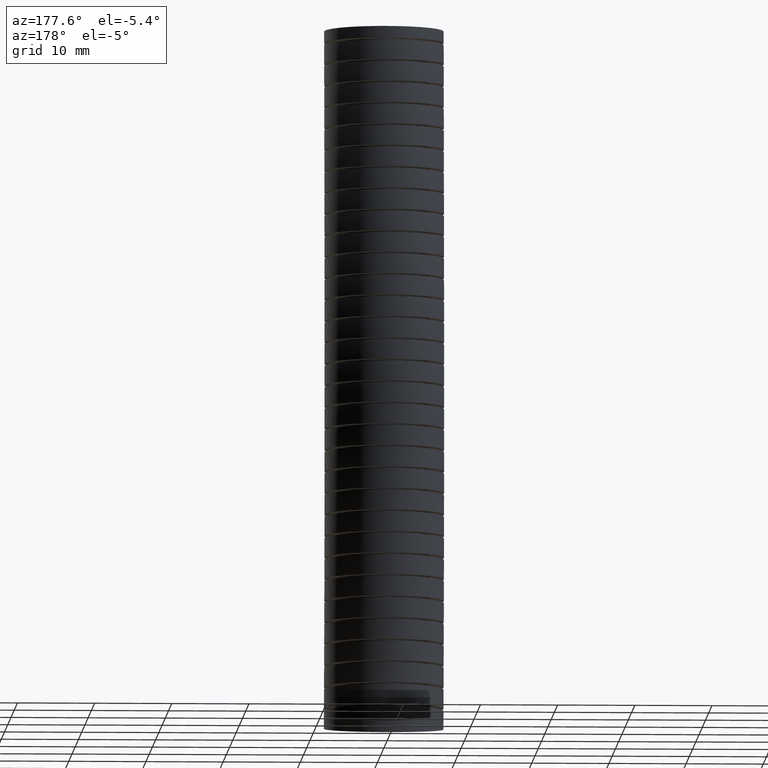
[diagram: clean part render]
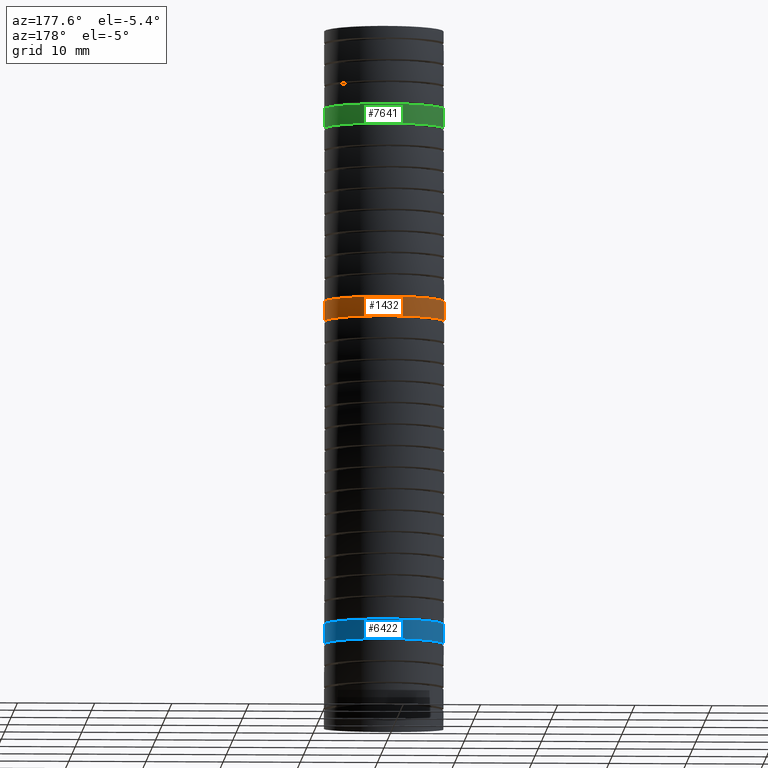
[diagram: same view with three faces highlighted in distinct colors, each labeled with its STEP entity id]
A machine part, auxiliary view with three faces highlighted in distinct colors.
Their STEP definitions:

[orange] entity #1432 — the highlighted face is a freeform B-spline surface patch.
#1352 = EDGE_LOOP ( 'NONE', ( #7107, #7112, #7097, #7099 ) ) ;
#1432 = ADVANCED_FACE ( 'NONE', ( #6829 ), #6858, .T. ) ;
#2818 = EDGE_CURVE ( 'NONE', #6515, #4520, #7166, .T. ) ;
#4520 = VERTEX_POINT ( 'NONE', #14256 ) ;
#6513 = VERTEX_POINT ( 'NONE', #11764 ) ;
#6515 = VERTEX_POINT ( 'NONE', #11823 ) ;
#6517 = VERTEX_POINT ( 'NONE', #11809 ) ;
#6519 = EDGE_CURVE ( 'NONE', #6513, #6517, #11848, .T. ) ;
#6574 = CARTESIAN_POINT ( 'NONE',  ( -0.3049999999999999400, -0.01189670328115248300, -3.380058092153300100 ) ) ;
#6575 = CARTESIAN_POINT ( 'NONE',  ( -0.3049999999999999900, 0.03783273064349428100, -2.858291051460112500 ) ) ;
#6576 = CARTESIAN_POINT ( 'NONE',  ( -0.3049999999999999900, 0.07694042471324441500, -1.669468061939300500 ) ) ;
#6577 = CARTESIAN_POINT ( 'NONE',  ( -0.3050000000000000500, 0.03078003440073754200, -0.6678710777714059700 ) ) ;
#6578 = CARTESIAN_POINT ( 'NONE',  ( -0.3050000000000000500, 3.735172737399427600E-017, 0.0000000000000000000 ) ) ;
#6829 = FACE_OUTER_BOUND ( 'NONE', #1352, .T. ) ;
#6833 = CARTESIAN_POINT ( 'NONE',  ( -0.3050000000000000500, -0.6339397472009050700, -3.484228316147418800 ) ) ;
#6834 = CARTESIAN_POINT ( 'NONE',  ( -0.3050000000000000500, -0.6165911457587421900, -3.301565899820480900 ) ) ;
#6835 = CARTESIAN_POINT ( 'NONE',  ( -0.3050000000000000500, -0.5689348463287677800, -2.799795492787948300 ) ) ;
#6836 = CARTESIAN_POINT ( 'NONE',  ( -0.3050000000000001000, -0.5337097317260344200, -1.651227135941712300 ) ) ;
#6837 = CARTESIAN_POINT ( 'NONE',  ( -0.3050000000000001600, -0.5794800608306244200, -0.6605737911785694000 ) ) ;
#6838 = CARTESIAN_POINT ( 'NONE',  ( -0.3050000000000001000, -0.6100000000000001000, 0.0000000000000000000 ) ) ;
#6839 = CARTESIAN_POINT ( 'NONE',  ( 0.3049999999999999400, -0.6339397472009050700, -3.484228316147418800 ) ) ;
#6840 = CARTESIAN_POINT ( 'NONE',  ( 0.3049999999999999400, -0.6165911457587421900, -3.301565899820480900 ) ) ;
#6841 = CARTESIAN_POINT ( 'NONE',  ( 0.3049999999999999400, -0.5689348463287677800, -2.799795492787948300 ) ) ;
#6842 = CARTESIAN_POINT ( 'NONE',  ( 0.3050000000000000500, -0.5337097317260344200, -1.651227135941712300 ) ) ;
#6843 = CARTESIAN_POINT ( 'NONE',  ( 0.3050000000000000500, -0.5794800608306244200, -0.6605737911785694000 ) ) ;
#6844 = CARTESIAN_POINT ( 'NONE',  ( 0.3050000000000000500, -0.6100000000000001000, 0.0000000000000000000 ) ) ;
#6845 = CARTESIAN_POINT ( 'NONE',  ( 0.3049999999999999900, -0.02999999999999999900, -3.569999999999999400 ) ) ;
#6846 = CARTESIAN_POINT ( 'NONE',  ( 0.3049999999999999400, -0.01189670328115252300, -3.380058092153300100 ) ) ;
#6847 = CARTESIAN_POINT ( 'NONE',  ( 0.3049999999999999900, 0.03783273064349424600, -2.858291051460112500 ) ) ;
#6848 = CARTESIAN_POINT ( 'NONE',  ( 0.3049999999999999900, 0.07694042471324438700, -1.669468061939300500 ) ) ;
#6849 = CARTESIAN_POINT ( 'NONE',  ( 0.3050000000000000500, 0.03078003440073750300, -0.6678710777714059700 ) ) ;
#6850 = CARTESIAN_POINT ( 'NONE',  ( 0.3050000000000000500, 0.0000000000000000000, 0.0000000000000000000 ) ) ;
#6858 =( BOUNDED_SURFACE ( )  B_SPLINE_SURFACE ( 3, 3, ( 
 ( #6850, #6849, #6848, #6847, #6846, #6845 ),
 ( #6844, #6843, #6842, #6841, #6840, #6839 ),
 ( #6838, #6837, #6836, #6835, #6834, #6833 ),
 ( #6578, #6577, #6576, #6575, #6574, #6881 ),
 ( #6880, #6879, #6878, #6877, #6876, #6875 ),
 ( #6874, #6873, #6872, #6871, #6870, #6869 ),
 ( #6868, #6867, #6866, #6865, #6864, #6863 ) ),
 .UNSPECIFIED., .F., .F., .F. ) 
 B_SPLINE_SURFACE_WITH_KNOTS ( ( 4, 3, 4 ),
 ( 4, 1, 1, 4 ),
 ( 0.0000000000000000000, 0.5000000000000000000, 1.000000000000000000 ),
 ( 0.0000000000000000000, 0.5599999999999999400, 0.8398242262648183400, 1.000000000000000000 ),
 .UNSPECIFIED. ) 
 GEOMETRIC_REPRESENTATION_ITEM ( )  RATIONAL_B_SPLINE_SURFACE ( (
 ( 1.000000000000000000, 1.000000000000000000, 1.000000000000000200, 1.000000000000000000, 1.000000000000000000, 1.000000000000000000),
 ( 0.3333333333333333100, 0.3333333333333333100, 0.3333333333333333100, 0.3333333333333333100, 0.3333333333333333100, 0.3333333333333333100),
 ( 0.3333333333333333100, 0.3333333333333333100, 0.3333333333333333100, 0.3333333333333333100, 0.3333333333333333100, 0.3333333333333333100),
 ( 1.000000000000000000, 1.000000000000000000, 1.000000000000000200, 1.000000000000000000, 1.000000000000000000, 1.000000000000000000),
 ( 0.3333333333333333100, 0.3333333333333333100, 0.3333333333333333100, 0.3333333333333333100, 0.3333333333333333100, 0.3333333333333333100),
 ( 0.3333333333333333100, 0.3333333333333333100, 0.3333333333333333100, 0.3333333333333333100, 0.3333333333333333100, 0.3333333333333333100),
 ( 1.000000000000000000, 1.000000000000000000, 1.000000000000000200, 1.000000000000000000, 1.000000000000000000, 1.000000000000000000) ) ) 
 REPRESENTATION_ITEM ( '' )  SURFACE ( )  );
#6863 = CARTESIAN_POINT ( 'NONE',  ( 0.3049999999999999900, -0.02999999999999999900, -3.569999999999999400 ) ) ;
#6864 = CARTESIAN_POINT ( 'NONE',  ( 0.3049999999999999400, -0.01189670328115252300, -3.380058092153300100 ) ) ;
#6865 = CARTESIAN_POINT ( 'NONE',  ( 0.3049999999999999900, 0.03783273064349424600, -2.858291051460112500 ) ) ;
#6866 = CARTESIAN_POINT ( 'NONE',  ( 0.3049999999999999900, 0.07694042471324438700, -1.669468061939300500 ) ) ;
#6867 = CARTESIAN_POINT ( 'NONE',  ( 0.3050000000000000500, 0.03078003440073750300, -0.6678710777714059700 ) ) ;
#6868 = CARTESIAN_POINT ( 'NONE',  ( 0.3050000000000000500, 0.0000000000000000000, 0.0000000000000000000 ) ) ;
#6869 = CARTESIAN_POINT ( 'NONE',  ( 0.3049999999999999400, 0.5739397472009051300, -3.655771683852579600 ) ) ;
#6870 = CARTESIAN_POINT ( 'NONE',  ( 0.3049999999999999400, 0.5927977391964371900, -3.458550284486119800 ) ) ;
#6871 = CARTESIAN_POINT ( 'NONE',  ( 0.3049999999999999400, 0.6446003076157559300, -2.916786610132277200 ) ) ;
#6872 = CARTESIAN_POINT ( 'NONE',  ( 0.3050000000000000500, 0.6875905811525232500, -1.687708987936889400 ) ) ;
#6873 = CARTESIAN_POINT ( 'NONE',  ( 0.3050000000000000500, 0.6410401296320993300, -0.6751683643642422100 ) ) ;
#6874 = CARTESIAN_POINT ( 'NONE',  ( 0.3050000000000000500, 0.6100000000000001000, 0.0000000000000000000 ) ) ;
#6875 = CARTESIAN_POINT ( 'NONE',  ( -0.3049999999999998800, 0.5739397472009051300, -3.655771683852579600 ) ) ;
#6876 = CARTESIAN_POINT ( 'NONE',  ( -0.3049999999999998800, 0.5927977391964373000, -3.458550284486119800 ) ) ;
#6877 = CARTESIAN_POINT ( 'NONE',  ( -0.3049999999999999400, 0.6446003076157562600, -2.916786610132277200 ) ) ;
#6878 = CARTESIAN_POINT ( 'NONE',  ( -0.3049999999999999400, 0.6875905811525234700, -1.687708987936889400 ) ) ;
#6879 = CARTESIAN_POINT ( 'NONE',  ( -0.3049999999999999400, 0.6410401296320996600, -0.6751683643642422100 ) ) ;
#6880 = CARTESIAN_POINT ( 'NONE',  ( -0.3049999999999999400, 0.6100000000000001000, 0.0000000000000000000 ) ) ;
#6881 = CARTESIAN_POINT ( 'NONE',  ( -0.3049999999999999900, -0.02999999999999996100, -3.569999999999999400 ) ) ;
#7097 = ORIENTED_EDGE ( 'NONE', *, *, #2818, .T. ) ;
#7099 = ORIENTED_EDGE ( 'NONE', *, *, #7101, .T. ) ;
#7100 = EDGE_CURVE ( 'NONE', #6513, #6515, #12398, .T. ) ;
#7101 = EDGE_CURVE ( 'NONE', #4520, #6517, #12437, .T. ) ;
#7107 = ORIENTED_EDGE ( 'NONE', *, *, #6519, .F. ) ;
#7112 = ORIENTED_EDGE ( 'NONE', *, *, #7100, .T. ) ;
#7162 = CARTESIAN_POINT ( 'NONE',  ( 0.3050000000000000500, 0.05421608436069735900, -1.489025684703928300 ) ) ;
#7163 = CARTESIAN_POINT ( 'NONE',  ( 0.3050000000000000500, 0.05364840844215725000, -1.455701533475108200 ) ) ;
#7164 = CARTESIAN_POINT ( 'NONE',  ( 0.3050000000000000500, 0.05301556047757510800, -1.422374746923287500 ) ) ;
#7165 = CARTESIAN_POINT ( 'NONE',  ( 0.3050000000000000500, 0.05232191951843480300, -1.389045502121618800 ) ) ;
#7166 = B_SPLINE_CURVE_WITH_KNOTS ( 'NONE', 3,
 ( #7165, #7164, #7163, #7162 ),
 .UNSPECIFIED., .F., .F.,
 ( 4, 4 ),
 ( 0.3883637733354464200, 0.4163384661891965100 ),
 .UNSPECIFIED. ) ;
#11764 = CARTESIAN_POINT ( 'NONE',  ( -0.3049999999999999900, 0.05232191952642160900, -1.389045502313499800 ) ) ;
#11809 = CARTESIAN_POINT ( 'NONE',  ( -0.3050000000000000500, 0.05421608436723624600, -1.489025684895853900 ) ) ;
#11823 = CARTESIAN_POINT ( 'NONE',  ( 0.3050000000000000500, 0.05232191951843480300, -1.389045502121618800 ) ) ;
#11844 = CARTESIAN_POINT ( 'NONE',  ( -0.3050000000000000500, 0.05421608436723624600, -1.489025684895853900 ) ) ;
#11845 = CARTESIAN_POINT ( 'NONE',  ( -0.3050000000000000500, 0.05364840844567772500, -1.455701533667084200 ) ) ;
#11846 = CARTESIAN_POINT ( 'NONE',  ( -0.3050000000000000500, 0.05301556048133715400, -1.422374747115257900 ) ) ;
#11847 = CARTESIAN_POINT ( 'NONE',  ( -0.3049999999999999900, 0.05232191952642160900, -1.389045502313499800 ) ) ;
#11848 = B_SPLINE_CURVE_WITH_KNOTS ( 'NONE', 3,
 ( #11847, #11846, #11845, #11844 ),
 .UNSPECIFIED., .F., .F.,
 ( 4, 4 ),
 ( 0.3883637733891543400, 0.4163384662429175400 ),
 .UNSPECIFIED. ) ;
#12398 = B_SPLINE_CURVE_WITH_KNOTS ( 'NONE', 3,
 ( #12407, #12406, #12405, #12404, #12403, #12402, #12401, #12400, #12476, #12475, #12474, #12473, #12472, #12471, #12470, #12469, #12468, #12467, #12466, #12465, #12464, #12463, #12462, #12461, #12460, #12459, #12458, #12457, #12456, #12455, #12454, #12453, #12452, #12451, #12450, #12449, #12448, #12447, #12446, #12445, #12444, #12443, #12442, #12441, #12440 ),
 .UNSPECIFIED., .F., .F.,
 ( 4, 2, 2, 2, 2, 2, 2, 2, 2, 2, 2, 1, 2, 2, 2, 2, 2, 2, 2, 2, 2, 2, 4 ),
 ( 0.02447188104066952800, 0.02523667891433648700, 0.02600147678800344600, 0.02753107253533736500, 0.02906066828267128400, 0.02982546615633823900, 0.03059026403000519900, 0.03211985977733911700, 0.03364945552467302900, 0.03517905127200694800, 0.03594384914567390300, 0.03670864701934085900, 0.03747344489300782200, 0.03823824276667478500, 0.03976783851400869700, 0.04053263638767565200, 0.04129743426134261500, 0.04282703000867653400, 0.04359182788234349000, 0.04435662575601044500, 0.04588622150334435700, 0.04741581725067826900, 0.04894541299801218700 ),
 .UNSPECIFIED. ) ;
#12400 = CARTESIAN_POINT ( 'NONE',  ( -0.2740391704865228800, 0.1876362043929584400, -1.389045502313499300 ) ) ;
#12401 = CARTESIAN_POINT ( 'NONE',  ( -0.2894612982742169600, 0.1504568965688803400, -1.389045502313499300 ) ) ;
#12402 = CARTESIAN_POINT ( 'NONE',  ( -0.2952238640508282300, 0.1314115909485642200, -1.389045502313499300 ) ) ;
#12403 = CARTESIAN_POINT ( 'NONE',  ( -0.3010552035841530000, 0.1021859338634097500, -1.389045502313499300 ) ) ;
#12404 = CARTESIAN_POINT ( 'NONE',  ( -0.3025267717145181400, 0.09233362256810602500, -1.389045502313499800 ) ) ;
#12405 = CARTESIAN_POINT ( 'NONE',  ( -0.3045023168977096200, 0.07240273107659674100, -1.389045502313499800 ) ) ;
#12406 = CARTESIAN_POINT ( 'NONE',  ( -0.3050000000000000500, 0.06230824413096428000, -1.389045502313500400 ) ) ;
#12407 = CARTESIAN_POINT ( 'NONE',  ( -0.3049999999999999900, 0.05232191952642160900, -1.389045502313499800 ) ) ;
#12432 = CARTESIAN_POINT ( 'NONE',  ( 0.3030209297381568600, 0.09416941149690122300, -1.489025684895854300 ) ) ;
#12433 = CARTESIAN_POINT ( 'NONE',  ( 0.3049999999999999900, 0.07436129477234211500, -1.489025684703928300 ) ) ;
#12434 = CARTESIAN_POINT ( 'NONE',  ( 0.3050000000000000500, 0.05421608436069735900, -1.489025684703928300 ) ) ;
#12437 = B_SPLINE_CURVE_WITH_KNOTS ( 'NONE', 3,
 ( #12434, #12433, #12432, #12524, #12523, #12522, #12521, #12520, #12519, #12518, #12517, #12516, #12515, #12514, #12513, #12512, #12511, #12510, #12509, #12508, #12507, #12506, #12505, #12504, #12503, #12502, #12501, #12500, #12499, #12498, #12497, #12496, #12495, #12494, #12493, #12492, #12491, #12490, #12489, #12488, #12487, #12486, #12485 ),
 .UNSPECIFIED., .F., .F.,
 ( 4, 2, 2, 2, 2, 2, 2, 2, 1, 2, 2, 2, 2, 2, 2, 2, 2, 2, 2, 2, 2, 4 ),
 ( 0.0000000000000000000, 0.001513270421354796700, 0.002269905632032194800, 0.003026540842709592500, 0.004539811264064392200, 0.006053081685419192000, 0.007566352106773991700, 0.008322987317451390300, 0.009079622528128791400, 0.009836257738806189100, 0.01059289294948359000, 0.01210616337083838900, 0.01361943379219318800, 0.01513270421354798900, 0.01588933942422538600, 0.01664597463490278400, 0.01815924505625757900, 0.01967251547761237100, 0.02042915068828976900, 0.02118578589896717000, 0.02269905632032196600, 0.02421232674167676800 ),
 .UNSPECIFIED. ) ;
#12440 = CARTESIAN_POINT ( 'NONE',  ( 0.3050000000000000500, 0.05232191951843480300, -1.389045502121618800 ) ) ;
#12441 = CARTESIAN_POINT ( 'NONE',  ( 0.3049999999999999400, 0.07246494044576944100, -1.389045502121618600 ) ) ;
#12442 = CARTESIAN_POINT ( 'NONE',  ( 0.3029959623355874000, 0.09246265779314273600, -1.389045502313498900 ) ) ;
#12443 = CARTESIAN_POINT ( 'NONE',  ( 0.2952228095737494700, 0.1314134055513214400, -1.389045502313498900 ) ) ;
#12444 = CARTESIAN_POINT ( 'NONE',  ( 0.2894283302678809500, 0.1505496309264537900, -1.389045502313498200 ) ) ;
#12445 = CARTESIAN_POINT ( 'NONE',  ( 0.2740130191455644200, 0.1876859426352333600, -1.389045502313498000 ) ) ;
#12446 = CARTESIAN_POINT ( 'NONE',  ( 0.2646052797060203200, 0.2052103978658778600, -1.389045502313499800 ) ) ;
#12447 = CARTESIAN_POINT ( 'NONE',  ( 0.2480317948509523100, 0.2299857075190831800, -1.389045502313499800 ) ) ;
#12448 = CARTESIAN_POINT ( 'NONE',  ( 0.2420939815806089400, 0.2379904033033193600, -1.389045502313498700 ) ) ;
#12449 = CARTESIAN_POINT ( 'NONE',  ( 0.2293700809435942100, 0.2534790298585428700, -1.389045502313498700 ) ) ;
#12450 = CARTESIAN_POINT ( 'NONE',  ( 0.2225813106086577100, 0.2609548551017805100, -1.389045502313498900 ) ) ;
#12451 = CARTESIAN_POINT ( 'NONE',  ( 0.2013894494302391200, 0.2821041761120626800, -1.389045502313498700 ) ) ;
#12452 = CARTESIAN_POINT ( 'NONE',  ( 0.1860305711837441900, 0.2946897037582483200, -1.389045502313500400 ) ) ;
#12453 = CARTESIAN_POINT ( 'NONE',  ( 0.1611507028720616800, 0.3113029988468620200, -1.389045502313500000 ) ) ;
#12454 = CARTESIAN_POINT ( 'NONE',  ( 0.1525017807308379500, 0.3164844041779276100, -1.389045502313500200 ) ) ;
#12455 = CARTESIAN_POINT ( 'NONE',  ( 0.1347971932684425000, 0.3259312112297762500, -1.389045502313500000 ) ) ;
#12456 = CARTESIAN_POINT ( 'NONE',  ( 0.1257760638414568400, 0.3301850435906640300, -1.389045502313498700 ) ) ;
#12457 = CARTESIAN_POINT ( 'NONE',  ( 0.09822039338114406400, 0.3415773899412624700, -1.389045502313498200 ) ) ;
#12458 = CARTESIAN_POINT ( 'NONE',  ( 0.07919828586040084100, 0.3473598686301411200, -1.389045502313498700 ) ) ;
#12459 = CARTESIAN_POINT ( 'NONE',  ( 0.04965796527501967900, 0.3532324434237308400, -1.389045502313498200 ) ) ;
#12460 = CARTESIAN_POINT ( 'NONE',  ( 0.03969405441064941700, 0.3547040043902023300, -1.389045502313498700 ) ) ;
#12461 = CARTESIAN_POINT ( 'NONE',  ( 0.01985173275200187800, 0.3566490414522430200, -1.389045502313498700 ) ) ;
#12462 = CARTESIAN_POINT ( 'NONE',  ( 1.780147511991895300E-006, 0.3576156263209373500, -1.389045502313501500 ) ) ;
#12463 = CARTESIAN_POINT ( 'NONE',  ( -0.01986325117772324800, 0.3566487932770270300, -1.389045502313499800 ) ) ;
#12464 = CARTESIAN_POINT ( 'NONE',  ( -0.03973594849428851300, 0.3546990144508957400, -1.389045502313499800 ) ) ;
#12465 = CARTESIAN_POINT ( 'NONE',  ( -0.04973101320874507400, 0.3532196485136198100, -1.389045502313499300 ) ) ;
#12466 = CARTESIAN_POINT ( 'NONE',  ( -0.07920440944249247700, 0.3473551840219791800, -1.389045502313499100 ) ) ;
#12467 = CARTESIAN_POINT ( 'NONE',  ( -0.09821559126375799300, 0.3415802264904692600, -1.389045502313500200 ) ) ;
#12468 = CARTESIAN_POINT ( 'NONE',  ( -0.1349883916410099000, 0.3263755373404218500, -1.389045502313499800 ) ) ;
#12469 = CARTESIAN_POINT ( 'NONE',  ( -0.1528999409599079400, 0.3168141827981473300, -1.389045502313499300 ) ) ;
#12470 = CARTESIAN_POINT ( 'NONE',  ( -0.1860265390293357200, 0.2946905778075961700, -1.389045502313500000 ) ) ;
#12471 = CARTESIAN_POINT ( 'NONE',  ( -0.2013914550824556800, 0.2821055701636327500, -1.389045502313498200 ) ) ;
#12472 = CARTESIAN_POINT ( 'NONE',  ( -0.2226192532827722900, 0.2609152860778736800, -1.389045502313498700 ) ) ;
#12473 = CARTESIAN_POINT ( 'NONE',  ( -0.2294153591070124700, 0.2534263995782562500, -1.389045502313500000 ) ) ;
#12474 = CARTESIAN_POINT ( 'NONE',  ( -0.2421099166489107700, 0.2379685075552165600, -1.389045502313500200 ) ) ;
#12475 = CARTESIAN_POINT ( 'NONE',  ( -0.2480400433540574700, 0.2299739419318169400, -1.389045502313500000 ) ) ;
#12476 = CARTESIAN_POINT ( 'NONE',  ( -0.2646048700128930100, 0.2052098796741062800, -1.389045502313499800 ) ) ;
#12485 = CARTESIAN_POINT ( 'NONE',  ( -0.3050000000000000500, 0.05421608436723624600, -1.489025684895853900 ) ) ;
#12486 = CARTESIAN_POINT ( 'NONE',  ( -0.3050000000000001600, 0.07411533237524774200, -1.489025684895853000 ) ) ;
#12487 = CARTESIAN_POINT ( 'NONE',  ( -0.3030038023917953600, 0.09432422194229266000, -1.489025684895851900 ) ) ;
#12488 = CARTESIAN_POINT ( 'NONE',  ( -0.2952033959948297000, 0.1333887072104377200, -1.489025684895851900 ) ) ;
#12489 = CARTESIAN_POINT ( 'NONE',  ( -0.2894348917521898400, 0.1523957757935634200, -1.489025684895851900 ) ) ;
#12490 = CARTESIAN_POINT ( 'NONE',  ( -0.2779454033296632200, 0.1801089814440161000, -1.489025684895852500 ) ) ;
#12491 = CARTESIAN_POINT ( 'NONE',  ( -0.2736152836100026500, 0.1892493734214503200, -1.489025684895853400 ) ) ;
#12492 = CARTESIAN_POINT ( 'NONE',  ( -0.2641697619551157700, 0.2068807723792940900, -1.489025684895853900 ) ) ;
#12493 = CARTESIAN_POINT ( 'NONE',  ( -0.2590419844739968400, 0.2154124220673941700, -1.489025684895852500 ) ) ;
#12494 = CARTESIAN_POINT ( 'NONE',  ( -0.2424689171882661600, 0.2401729759777162000, -1.489025684895852700 ) ) ;
#12495 = CARTESIAN_POINT ( 'NONE',  ( -0.2298188210554519000, 0.2556024332082872900, -1.489025684895852700 ) ) ;
#12496 = CARTESIAN_POINT ( 'NONE',  ( -0.2013351589844653800, 0.2840424606014516600, -1.489025684895851900 ) ) ;
#12497 = CARTESIAN_POINT ( 'NONE',  ( -0.1859288463572547100, 0.2966368482352246300, -1.489025684895854100 ) ) ;
#12498 = CARTESIAN_POINT ( 'NONE',  ( -0.1611391399806433900, 0.3131828041416361800, -1.489025684895854500 ) ) ;
#12499 = CARTESIAN_POINT ( 'NONE',  ( -0.1525937971514019500, 0.3183042985234233500, -1.489025684895852500 ) ) ;
#12500 = CARTESIAN_POINT ( 'NONE',  ( -0.1349251742627311200, 0.3277404820693423600, -1.489025684895852500 ) ) ;
#12501 = CARTESIAN_POINT ( 'NONE',  ( -0.1257848616435306200, 0.3320554138363704400, -1.489025684895853400 ) ) ;
#12502 = CARTESIAN_POINT ( 'NONE',  ( -0.09809413691818350000, 0.3434985677295626100, -1.489025684895854300 ) ) ;
#12503 = CARTESIAN_POINT ( 'NONE',  ( -0.07908589618747709200, 0.3492516017987255500, -1.489025684895852500 ) ) ;
#12504 = CARTESIAN_POINT ( 'NONE',  ( -0.03998055034308429400, 0.3570289744040070500, -1.489025684895853000 ) ) ;
#12505 = CARTESIAN_POINT ( 'NONE',  ( -0.01978179802756929000, 0.3590096883980539200, -1.489025684895852100 ) ) ;
#12506 = CARTESIAN_POINT ( 'NONE',  ( 0.01999187542981506800, 0.3589960001531886100, -1.489025684895852100 ) ) ;
#12507 = CARTESIAN_POINT ( 'NONE',  ( 0.03977619136808244200, 0.3570642767334251700, -1.489025684895851600 ) ) ;
#12508 = CARTESIAN_POINT ( 'NONE',  ( 0.06929473903843726100, 0.3512015472370842400, -1.489025684895852100 ) ) ;
#12509 = CARTESIAN_POINT ( 'NONE',  ( 0.07907992607650557400, 0.3487485647566804200, -1.489025684895852500 ) ) ;
#12510 = CARTESIAN_POINT ( 'NONE',  ( 0.09817092856317533000, 0.3429550196387287100, -1.489025684895852700 ) ) ;
#12511 = CARTESIAN_POINT ( 'NONE',  ( 0.1168888226121174300, 0.3362548552582950200, -1.489025684895853900 ) ) ;
#12512 = CARTESIAN_POINT ( 'NONE',  ( 0.1348706173674820400, 0.3277660371483467900, -1.489025684895852700 ) ) ;
#12513 = CARTESIAN_POINT ( 'NONE',  ( 0.1524787615488214800, 0.3183692824344637200, -1.489025684895853000 ) ) ;
#12514 = CARTESIAN_POINT ( 'NONE',  ( 0.1611419565385841000, 0.3131845667529951100, -1.489025684895852700 ) ) ;
#12515 = CARTESIAN_POINT ( 'NONE',  ( 0.1861542450343210700, 0.2964790695270074200, -1.489025684895852100 ) ) ;
#12516 = CARTESIAN_POINT ( 'NONE',  ( 0.2015141239263084100, 0.2838654339715927500, -1.489025684895853000 ) ) ;
#12517 = CARTESIAN_POINT ( 'NONE',  ( 0.2296654137411156800, 0.2557539398513973800, -1.489025684895853200 ) ) ;
#12518 = CARTESIAN_POINT ( 'NONE',  ( 0.2425543787223745100, 0.2400685785255896900, -1.489025684895852500 ) ) ;
#12519 = CARTESIAN_POINT ( 'NONE',  ( 0.2647022276069392300, 0.2069323672991965600, -1.489025684895852500 ) ) ;
#12520 = CARTESIAN_POINT ( 'NONE',  ( 0.2740770420474539800, 0.1894226479026743800, -1.489025684895853200 ) ) ;
#12521 = CARTESIAN_POINT ( 'NONE',  ( 0.2855674013504755400, 0.1617327926089662000, -1.489025684895853200 ) ) ;
#12522 = CARTESIAN_POINT ( 'NONE',  ( 0.2889779483208851900, 0.1522131112906471600, -1.489025684895852500 ) ) ;
#12523 = CARTESIAN_POINT ( 'NONE',  ( 0.2947888618817546300, 0.1330576698201743900, -1.489025684895853000 ) ) ;
#12524 = CARTESIAN_POINT ( 'NONE',  ( 0.2972053942246992200, 0.1233966709191662400, -1.489025684895854300 ) ) ;
#14256 = CARTESIAN_POINT ( 'NONE',  ( 0.3050000000000000500, 0.05421608436069735900, -1.489025684703928300 ) ) ;

[blue] entity #6422 — the highlighted face is a freeform B-spline surface patch.
#1989 = CARTESIAN_POINT ( 'NONE',  ( -0.3049999999999999900, 0.009314224273082137900, -3.137699816077109500 ) ) ;
#2042 = CARTESIAN_POINT ( 'NONE',  ( -0.3049999999999999400, 0.01718359904029205200, -3.038041253195780600 ) ) ;
#2043 = CARTESIAN_POINT ( 'NONE',  ( -0.3049999999999999900, 0.009314224273082137900, -3.137699816077109500 ) ) ;
#2044 = CARTESIAN_POINT ( 'NONE',  ( -0.3049999999999999400, 0.01204488271966974000, -3.104484643385703200 ) ) ;
#2045 = CARTESIAN_POINT ( 'NONE',  ( -0.3049999999999999400, 0.01467567780329371300, -3.071265432578998300 ) ) ;
#2046 = CARTESIAN_POINT ( 'NONE',  ( -0.3049999999999999400, 0.01718359904029205200, -3.038041253195780600 ) ) ;
#2047 = B_SPLINE_CURVE_WITH_KNOTS ( 'NONE', 3,
 ( #2046, #2045, #2044, #2043 ),
 .UNSPECIFIED., .F., .F.,
 ( 4, 4 ),
 ( 0.8505083096109503600, 0.8785034948660098700 ),
 .UNSPECIFIED. ) ;
#2146 = CARTESIAN_POINT ( 'NONE',  ( 0.3049999999999999400, 0.01718359906927166200, -3.038041253003823000 ) ) ;
#6338 = VERTEX_POINT ( 'NONE', #8714 ) ;
#6340 = EDGE_CURVE ( 'NONE', #13828, #6338, #8712, .T. ) ;
#6402 = ORIENTED_EDGE ( 'NONE', *, *, #6403, .T. ) ;
#6403 = EDGE_CURVE ( 'NONE', #6338, #13813, #9683, .T. ) ;
#6422 = ADVANCED_FACE ( 'NONE', ( #9957 ), #10045, .T. ) ;
#6423 = EDGE_LOOP ( 'NONE', ( #6424, #6425, #6427, #6402 ) ) ;
#6424 = ORIENTED_EDGE ( 'NONE', *, *, #13817, .F. ) ;
#6425 = ORIENTED_EDGE ( 'NONE', *, *, #6426, .T. ) ;
#6426 = EDGE_CURVE ( 'NONE', #13822, #13828, #10046, .T. ) ;
#6427 = ORIENTED_EDGE ( 'NONE', *, *, #6340, .T. ) ;
#8704 = CARTESIAN_POINT ( 'NONE',  ( 0.3049999999999999900, 0.009314224273041942600, -3.137699816077352400 ) ) ;
#8705 = CARTESIAN_POINT ( 'NONE',  ( 0.3049999999999999900, 0.01204488272494555700, -3.104484643321534100 ) ) ;
#8706 = CARTESIAN_POINT ( 'NONE',  ( 0.3049999999999999900, 0.01467567781347816300, -3.071265432450401600 ) ) ;
#8707 = CARTESIAN_POINT ( 'NONE',  ( 0.3049999999999999400, 0.01718359906927166200, -3.038041253003823000 ) ) ;
#8712 = B_SPLINE_CURVE_WITH_KNOTS ( 'NONE', 3,
 ( #8707, #8706, #8705, #8704 ),
 .UNSPECIFIED., .F., .F.,
 ( 4, 4 ),
 ( 0.8505083095567294000, 0.8785034948660783700 ),
 .UNSPECIFIED. ) ;
#8714 = CARTESIAN_POINT ( 'NONE',  ( 0.3049999999999999900, 0.009314224273041942600, -3.137699816077352400 ) ) ;
#9641 = CARTESIAN_POINT ( 'NONE',  ( -0.2953228544665035300, 0.08826438653192977800, -3.137699816077108600 ) ) ;
#9642 = CARTESIAN_POINT ( 'NONE',  ( -0.2894459981512789200, 0.1077159116031603500, -3.137699816077108600 ) ) ;
#9643 = CARTESIAN_POINT ( 'NONE',  ( -0.2742548961802041600, 0.1445286471249254100, -3.137699816077108600 ) ) ;
#9644 = CARTESIAN_POINT ( 'NONE',  ( -0.2649191226686900500, 0.1621062065020064400, -3.137699816077110300 ) ) ;
#9645 = CARTESIAN_POINT ( 'NONE',  ( -0.2482326904747919300, 0.1871948331880729500, -3.137699816077109000 ) ) ;
#9646 = CARTESIAN_POINT ( 'NONE',  ( -0.2422294465971455400, 0.1953177383977357000, -3.137699816077108100 ) ) ;
#9647 = CARTESIAN_POINT ( 'NONE',  ( -0.2295839824684623700, 0.2107811186493669100, -3.137699816077108600 ) ) ;
#9648 = CARTESIAN_POINT ( 'NONE',  ( -0.2162413804638158900, 0.2255532365498734700, -3.137699816077108100 ) ) ;
#9649 = CARTESIAN_POINT ( 'NONE',  ( -0.2015227026861230200, 0.2389608763363677800, -3.137699816077107700 ) ) ;
#9650 = CARTESIAN_POINT ( 'NONE',  ( -0.1861051616819562600, 0.2516755429625968700, -3.137699816077107700 ) ) ;
#9651 = CARTESIAN_POINT ( 'NONE',  ( -0.1779992790817515300, 0.2577166247061090700, -3.137699816077106400 ) ) ;
#9652 = CARTESIAN_POINT ( 'NONE',  ( -0.1529915929143852200, 0.2744913949548593600, -3.137699816077106400 ) ) ;
#9653 = CARTESIAN_POINT ( 'NONE',  ( -0.1354527172600466500, 0.2838921353958094900, -3.137699816077108600 ) ) ;
#9654 = CARTESIAN_POINT ( 'NONE',  ( -0.09867963848292182800, 0.2992085837165921500, -3.137699816077109000 ) ) ;
#9655 = CARTESIAN_POINT ( 'NONE',  ( -0.07923642396218731600, 0.3051416904954378200, -3.137699816077106400 ) ) ;
#9656 = CARTESIAN_POINT ( 'NONE',  ( -0.04011013243586022300, 0.3129635463459513600, -3.137699816077106400 ) ) ;
#9657 = CARTESIAN_POINT ( 'NONE',  ( -0.02032240943580634500, 0.3149387423001984700, -3.137699816077107700 ) ) ;
#9658 = CARTESIAN_POINT ( 'NONE',  ( 0.009699385560651654900, 0.3149691093132272500, -3.137699816077108100 ) ) ;
#9659 = CARTESIAN_POINT ( 'NONE',  ( 0.01981321989866561100, 0.3144787782119406500, -3.137699816077103700 ) ) ;
#9660 = CARTESIAN_POINT ( 'NONE',  ( 0.03975413760047027300, 0.3125181785834590400, -3.137699816077105900 ) ) ;
#9661 = CARTESIAN_POINT ( 'NONE',  ( 0.04961503050154864700, 0.3110528889890929500, -3.137699816077104100 ) ) ;
#9662 = CARTESIAN_POINT ( 'NONE',  ( 0.07887627717245514200, 0.3052342127467534400, -3.137699816077103700 ) ) ;
#9663 = CARTESIAN_POINT ( 'NONE',  ( 0.09797029829537440300, 0.2994671059672366400, -3.137699816077110300 ) ) ;
#9664 = CARTESIAN_POINT ( 'NONE',  ( 0.1352226899195856900, 0.2840239516190684000, -3.137699816077111700 ) ) ;
#9665 = CARTESIAN_POINT ( 'NONE',  ( 0.1527808276254147300, 0.2745994582836152600, -3.137699816077109500 ) ) ;
#9666 = CARTESIAN_POINT ( 'NONE',  ( 0.1775815609863939900, 0.2580129592040271100, -3.137699816077108100 ) ) ;
#9667 = CARTESIAN_POINT ( 'NONE',  ( 0.1855904875818014400, 0.2520727946082849700, -3.137699816077107700 ) ) ;
#9668 = CARTESIAN_POINT ( 'NONE',  ( 0.2010806013577585700, 0.2393510355608066700, -3.137699816077108600 ) ) ;
#9669 = CARTESIAN_POINT ( 'NONE',  ( 0.2085765551580693000, 0.2325468338204727000, -3.137699816077107700 ) ) ;
#9670 = CARTESIAN_POINT ( 'NONE',  ( 0.2297774719858208800, 0.2113064943933899700, -3.137699816077108100 ) ) ;
#9671 = CARTESIAN_POINT ( 'NONE',  ( 0.2423781676069580200, 0.1959251069849768900, -3.137699816077109000 ) ) ;
#9672 = CARTESIAN_POINT ( 'NONE',  ( 0.2645420943176889900, 0.1627431336112497000, -3.137699816077109500 ) ) ;
#9673 = CARTESIAN_POINT ( 'NONE',  ( 0.2741153376611889500, 0.1448130698489351600, -3.137699816077108600 ) ) ;
#9674 = CARTESIAN_POINT ( 'NONE',  ( 0.2893466987013007000, 0.1080094778703427200, -3.137699816077106400 ) ) ;
#9675 = CARTESIAN_POINT ( 'NONE',  ( 0.2951407660108534300, 0.08897381894601412400, -3.137699816077108100 ) ) ;
#9676 = CARTESIAN_POINT ( 'NONE',  ( 0.3010363348444183900, 0.05944757509685127900, -3.137699816077108100 ) ) ;
#9677 = CARTESIAN_POINT ( 'NONE',  ( 0.3025261182507870700, 0.04944570563454144000, -3.137699816077107700 ) ) ;
#9678 = CARTESIAN_POINT ( 'NONE',  ( 0.3045032660515056800, 0.02944160710364266900, -3.137699816077108100 ) ) ;
#9679 = CARTESIAN_POINT ( 'NONE',  ( 0.3049999999999998800, 0.01939859892394100700, -3.137699816077350600 ) ) ;
#9680 = CARTESIAN_POINT ( 'NONE',  ( 0.3049999999999999900, 0.009314224273041942600, -3.137699816077352400 ) ) ;
#9683 = B_SPLINE_CURVE_WITH_KNOTS ( 'NONE', 3,
 ( #9680, #9679, #9678, #9677, #9676, #9675, #9674, #9673, #9672, #9671, #9670, #9669, #9668, #9667, #9666, #9665, #9664, #9663, #9662, #9661, #9660, #9659, #9658, #9657, #9656, #9655, #9654, #9653, #9652, #9651, #9650, #9649, #9648, #9647, #9646, #9645, #9644, #9643, #9642, #9641, #9704, #9703, #9702 ),
 .UNSPECIFIED., .F., .F.,
 ( 4, 2, 2, 2, 2, 2, 2, 2, 2, 2, 2, 2, 2, 2, 2, 2, 1, 2, 2, 2, 2, 4 ),
 ( 0.0000000000000000000, 0.0007657785819049689300, 0.001531557163809937900, 0.003063114327619874800, 0.004594671491429812500, 0.006126228655239749700, 0.006892007237144717400, 0.007657785819049686900, 0.009189342982859626700, 0.01072090014666956700, 0.01148667872857453900, 0.01225245731047951100, 0.01378401447428945200, 0.01531557163809939500, 0.01684712880190934000, 0.01761290738381431100, 0.01837868596571928100, 0.01914446454762425100, 0.01991024312952922200, 0.02144180029333916600, 0.02297335745714911000, 0.02450491462095905400 ),
 .UNSPECIFIED. ) ;
#9702 = CARTESIAN_POINT ( 'NONE',  ( -0.3049999999999999900, 0.009314224273082137900, -3.137699816077109500 ) ) ;
#9703 = CARTESIAN_POINT ( 'NONE',  ( -0.3049999999999999900, 0.02931333794669863100, -3.137699816077108600 ) ) ;
#9704 = CARTESIAN_POINT ( 'NONE',  ( -0.3030602080092641400, 0.04910272141841251500, -3.137699816077108600 ) ) ;
#9957 = FACE_OUTER_BOUND ( 'NONE', #6423, .T. ) ;
#10027 = CARTESIAN_POINT ( 'NONE',  ( -0.3050000000000001600, -0.5794800608306244200, -0.6605737911785694000 ) ) ;
#10028 = CARTESIAN_POINT ( 'NONE',  ( -0.3050000000000001000, -0.6100000000000001000, 0.0000000000000000000 ) ) ;
#10029 = CARTESIAN_POINT ( 'NONE',  ( 0.3049999999999999400, -0.6339397472009050700, -3.484228316147418800 ) ) ;
#10030 = CARTESIAN_POINT ( 'NONE',  ( 0.3049999999999999400, -0.6165911457587421900, -3.301565899820480900 ) ) ;
#10031 = CARTESIAN_POINT ( 'NONE',  ( 0.3049999999999999400, -0.5689348463287677800, -2.799795492787948300 ) ) ;
#10032 = CARTESIAN_POINT ( 'NONE',  ( 0.3050000000000000500, -0.5337097317260344200, -1.651227135941712300 ) ) ;
#10033 = CARTESIAN_POINT ( 'NONE',  ( 0.3050000000000000500, -0.5794800608306244200, -0.6605737911785694000 ) ) ;
#10034 = CARTESIAN_POINT ( 'NONE',  ( 0.3050000000000000500, -0.6100000000000001000, 0.0000000000000000000 ) ) ;
#10035 = CARTESIAN_POINT ( 'NONE',  ( 0.3049999999999999900, -0.02999999999999999900, -3.569999999999999400 ) ) ;
#10036 = CARTESIAN_POINT ( 'NONE',  ( 0.3049999999999999400, -0.01189670328115252300, -3.380058092153300100 ) ) ;
#10037 = CARTESIAN_POINT ( 'NONE',  ( 0.3049999999999999900, 0.03783273064349424600, -2.858291051460112500 ) ) ;
#10038 = CARTESIAN_POINT ( 'NONE',  ( 0.3049999999999999900, 0.07694042471324438700, -1.669468061939300500 ) ) ;
#10039 = CARTESIAN_POINT ( 'NONE',  ( 0.3050000000000000500, 0.03078003440073750300, -0.6678710777714059700 ) ) ;
#10040 = CARTESIAN_POINT ( 'NONE',  ( 0.3050000000000000500, 0.0000000000000000000, 0.0000000000000000000 ) ) ;
#10041 = CARTESIAN_POINT ( 'NONE',  ( -0.2972364992028440100, 0.08639828730328953700, -3.038041253195779200 ) ) ;
#10042 = CARTESIAN_POINT ( 'NONE',  ( -0.3030740674984560600, 0.05689396754391280000, -3.038041253195778800 ) ) ;
#10043 = CARTESIAN_POINT ( 'NONE',  ( -0.3050000000000000500, 0.03709982063952717300, -3.038041253195780600 ) ) ;
#10044 = CARTESIAN_POINT ( 'NONE',  ( -0.3049999999999999400, 0.01718359904029205200, -3.038041253195780600 ) ) ;
#10045 =( BOUNDED_SURFACE ( )  B_SPLINE_SURFACE ( 3, 3, ( 
 ( #10040, #10039, #10038, #10037, #10036, #10035 ),
 ( #10034, #10033, #10032, #10031, #10030, #10029 ),
 ( #10028, #10027, #10078, #10077, #10076, #10075 ),
 ( #10074, #10073, #10072, #10071, #10070, #10069 ),
 ( #10068, #10066, #10065, #10064, #10063, #10062 ),
 ( #10060, #10059, #10058, #10056, #10055, #10054 ),
 ( #10053, #10052, #10051, #10050, #10049, #10048 ) ),
 .UNSPECIFIED., .F., .F., .F. ) 
 B_SPLINE_SURFACE_WITH_KNOTS ( ( 4, 3, 4 ),
 ( 4, 1, 1, 4 ),
 ( 0.0000000000000000000, 0.5000000000000000000, 1.000000000000000000 ),
 ( 0.0000000000000000000, 0.5599999999999999400, 0.8398242262648183400, 1.000000000000000000 ),
 .UNSPECIFIED. ) 
 GEOMETRIC_REPRESENTATION_ITEM ( )  RATIONAL_B_SPLINE_SURFACE ( (
 ( 1.000000000000000000, 1.000000000000000000, 1.000000000000000200, 1.000000000000000000, 1.000000000000000000, 1.000000000000000000),
 ( 0.3333333333333333100, 0.3333333333333333100, 0.3333333333333333100, 0.3333333333333333100, 0.3333333333333333100, 0.3333333333333333100),
 ( 0.3333333333333333100, 0.3333333333333333100, 0.3333333333333333100, 0.3333333333333333100, 0.3333333333333333100, 0.3333333333333333100),
 ( 1.000000000000000000, 1.000000000000000000, 1.000000000000000200, 1.000000000000000000, 1.000000000000000000, 1.000000000000000000),
 ( 0.3333333333333333100, 0.3333333333333333100, 0.3333333333333333100, 0.3333333333333333100, 0.3333333333333333100, 0.3333333333333333100),
 ( 0.3333333333333333100, 0.3333333333333333100, 0.3333333333333333100, 0.3333333333333333100, 0.3333333333333333100, 0.3333333333333333100),
 ( 1.000000000000000000, 1.000000000000000000, 1.000000000000000200, 1.000000000000000000, 1.000000000000000000, 1.000000000000000000) ) ) 
 REPRESENTATION_ITEM ( '' )  SURFACE ( )  );
#10046 = B_SPLINE_CURVE_WITH_KNOTS ( 'NONE', 3,
 ( #10044, #10043, #10042, #10041, #10128, #10127, #10126, #10125, #10124, #10123, #10122, #10121, #10120, #10119, #10118, #10117, #10116, #10115, #10114, #10113, #10112, #10111, #10110, #10108, #10107, #10106, #10105, #10104, #10103, #10102, #10101, #10100, #10099, #10098, #10097, #10096, #10095, #10094, #10093, #10092, #10091, #10090, #10089, #10088, #10087 ),
 .UNSPECIFIED., .F., .F.,
 ( 4, 2, 2, 1, 2, 2, 2, 2, 2, 2, 2, 2, 2, 2, 2, 2, 2, 2, 2, 2, 2, 2, 4 ),
 ( 0.02424033095107463700, 0.02575490766648089200, 0.02651219602418402100, 0.02726948438188714700, 0.02802677273959027600, 0.02878406109729340600, 0.03029863781269966400, 0.03105592617040279400, 0.03181321452810591900, 0.03332779124351218500, 0.03408507960121531100, 0.03484236795891844400, 0.03635694467432470200, 0.03787152138973096100, 0.03862880974743409400, 0.03938609810513722700, 0.04090067482054348500, 0.04241525153594974400, 0.04392982825135599600, 0.04468711660905912800, 0.04544440496676226100, 0.04695898168216852000, 0.04847355839757478600 ),
 .UNSPECIFIED. ) ;
#10048 = CARTESIAN_POINT ( 'NONE',  ( 0.3049999999999999900, -0.02999999999999999900, -3.569999999999999400 ) ) ;
#10049 = CARTESIAN_POINT ( 'NONE',  ( 0.3049999999999999400, -0.01189670328115252300, -3.380058092153300100 ) ) ;
#10050 = CARTESIAN_POINT ( 'NONE',  ( 0.3049999999999999900, 0.03783273064349424600, -2.858291051460112500 ) ) ;
#10051 = CARTESIAN_POINT ( 'NONE',  ( 0.3049999999999999900, 0.07694042471324438700, -1.669468061939300500 ) ) ;
#10052 = CARTESIAN_POINT ( 'NONE',  ( 0.3050000000000000500, 0.03078003440073750300, -0.6678710777714059700 ) ) ;
#10053 = CARTESIAN_POINT ( 'NONE',  ( 0.3050000000000000500, 0.0000000000000000000, 0.0000000000000000000 ) ) ;
#10054 = CARTESIAN_POINT ( 'NONE',  ( 0.3049999999999999400, 0.5739397472009051300, -3.655771683852579600 ) ) ;
#10055 = CARTESIAN_POINT ( 'NONE',  ( 0.3049999999999999400, 0.5927977391964371900, -3.458550284486119800 ) ) ;
#10056 = CARTESIAN_POINT ( 'NONE',  ( 0.3049999999999999400, 0.6446003076157559300, -2.916786610132277200 ) ) ;
#10058 = CARTESIAN_POINT ( 'NONE',  ( 0.3050000000000000500, 0.6875905811525232500, -1.687708987936889400 ) ) ;
#10059 = CARTESIAN_POINT ( 'NONE',  ( 0.3050000000000000500, 0.6410401296320993300, -0.6751683643642422100 ) ) ;
#10060 = CARTESIAN_POINT ( 'NONE',  ( 0.3050000000000000500, 0.6100000000000001000, 0.0000000000000000000 ) ) ;
#10062 = CARTESIAN_POINT ( 'NONE',  ( -0.3049999999999998800, 0.5739397472009051300, -3.655771683852579600 ) ) ;
#10063 = CARTESIAN_POINT ( 'NONE',  ( -0.3049999999999998800, 0.5927977391964373000, -3.458550284486119800 ) ) ;
#10064 = CARTESIAN_POINT ( 'NONE',  ( -0.3049999999999999400, 0.6446003076157562600, -2.916786610132277200 ) ) ;
#10065 = CARTESIAN_POINT ( 'NONE',  ( -0.3049999999999999400, 0.6875905811525234700, -1.687708987936889400 ) ) ;
#10066 = CARTESIAN_POINT ( 'NONE',  ( -0.3049999999999999400, 0.6410401296320996600, -0.6751683643642422100 ) ) ;
#10068 = CARTESIAN_POINT ( 'NONE',  ( -0.3049999999999999400, 0.6100000000000001000, 0.0000000000000000000 ) ) ;
#10069 = CARTESIAN_POINT ( 'NONE',  ( -0.3049999999999999900, -0.02999999999999996100, -3.569999999999999400 ) ) ;
#10070 = CARTESIAN_POINT ( 'NONE',  ( -0.3049999999999999400, -0.01189670328115248300, -3.380058092153300100 ) ) ;
#10071 = CARTESIAN_POINT ( 'NONE',  ( -0.3049999999999999900, 0.03783273064349428100, -2.858291051460112500 ) ) ;
#10072 = CARTESIAN_POINT ( 'NONE',  ( -0.3049999999999999900, 0.07694042471324441500, -1.669468061939300500 ) ) ;
#10073 = CARTESIAN_POINT ( 'NONE',  ( -0.3050000000000000500, 0.03078003440073754200, -0.6678710777714059700 ) ) ;
#10074 = CARTESIAN_POINT ( 'NONE',  ( -0.3050000000000000500, 3.735172737399427600E-017, 0.0000000000000000000 ) ) ;
#10075 = CARTESIAN_POINT ( 'NONE',  ( -0.3050000000000000500, -0.6339397472009050700, -3.484228316147418800 ) ) ;
#10076 = CARTESIAN_POINT ( 'NONE',  ( -0.3050000000000000500, -0.6165911457587421900, -3.301565899820480900 ) ) ;
#10077 = CARTESIAN_POINT ( 'NONE',  ( -0.3050000000000000500, -0.5689348463287677800, -2.799795492787948300 ) ) ;
#10078 = CARTESIAN_POINT ( 'NONE',  ( -0.3050000000000001000, -0.5337097317260344200, -1.651227135941712300 ) ) ;
#10087 = CARTESIAN_POINT ( 'NONE',  ( 0.3049999999999999400, 0.01718359906927166200, -3.038041253003823000 ) ) ;
#10088 = CARTESIAN_POINT ( 'NONE',  ( 0.3049999999999997700, 0.03734595788048013900, -3.038041253003822100 ) ) ;
#10089 = CARTESIAN_POINT ( 'NONE',  ( 0.3030263623602944000, 0.05730000286837825400, -3.038041253195780600 ) ) ;
#10090 = CARTESIAN_POINT ( 'NONE',  ( 0.2951464688045964400, 0.09679274285228987900, -3.038041253195780600 ) ) ;
#10091 = CARTESIAN_POINT ( 'NONE',  ( 0.2893061583765071900, 0.1159332598434629400, -3.038041253195783200 ) ) ;
#10092 = CARTESIAN_POINT ( 'NONE',  ( 0.2778890272586417300, 0.1434796671315156400, -3.038041253195783200 ) ) ;
#10093 = CARTESIAN_POINT ( 'NONE',  ( 0.2736339940326514800, 0.1524829460048376100, -3.038041253195780600 ) ) ;
#10094 = CARTESIAN_POINT ( 'NONE',  ( 0.2642081515025538900, 0.1701249710786902900, -3.038041253195781000 ) ) ;
#10095 = CARTESIAN_POINT ( 'NONE',  ( 0.2590057664633722000, 0.1788057391088911100, -3.038041253195779700 ) ) ;
#10096 = CARTESIAN_POINT ( 'NONE',  ( 0.2423011987283211200, 0.2037920905332624400, -3.038041253195779200 ) ) ;
#10097 = CARTESIAN_POINT ( 'NONE',  ( 0.2296794685539932700, 0.2191581343969898600, -3.038041253195781900 ) ) ;
#10098 = CARTESIAN_POINT ( 'NONE',  ( 0.2015123488997905800, 0.2473480797636093100, -3.038041253195781900 ) ) ;
#10099 = CARTESIAN_POINT ( 'NONE',  ( 0.1858017377119408300, 0.2602456150487601500, -3.038041253195778300 ) ) ;
#10100 = CARTESIAN_POINT ( 'NONE',  ( 0.1526597787799917100, 0.2823813466384425000, -3.038041253195779700 ) ) ;
#10101 = CARTESIAN_POINT ( 'NONE',  ( 0.1351283801622059100, 0.2917644009434014500, -3.038041253195779200 ) ) ;
#10102 = CARTESIAN_POINT ( 'NONE',  ( 0.1073663143813881600, 0.3032690683499735300, -3.038041253195778800 ) ) ;
#10103 = CARTESIAN_POINT ( 'NONE',  ( 0.09783562047996936800, 0.3066764518413085900, -3.038041253195778800 ) ) ;
#10104 = CARTESIAN_POINT ( 'NONE',  ( 0.07868899343313957900, 0.3124731772546661700, -3.038041253195779200 ) ) ;
#10105 = CARTESIAN_POINT ( 'NONE',  ( 0.06902672070849606700, 0.3148850734480117500, -3.038041253195779200 ) ) ;
#10106 = CARTESIAN_POINT ( 'NONE',  ( 0.03977797106956540400, 0.3206884100650264100, -3.038041253195779700 ) ) ;
#10107 = CARTESIAN_POINT ( 'NONE',  ( 0.01985121210533603500, 0.3226612360391864500, -3.038041253195779700 ) ) ;
#10108 = CARTESIAN_POINT ( 'NONE',  ( -0.02038914832626997200, 0.3226256988001439100, -3.038041253195781000 ) ) ;
#10110 = CARTESIAN_POINT ( 'NONE',  ( -0.04019750878715932400, 0.3206338655348051600, -3.038041253195782300 ) ) ;
#10111 = CARTESIAN_POINT ( 'NONE',  ( -0.06945805976336992500, 0.3147846647413994300, -3.038041253195784100 ) ) ;
#10112 = CARTESIAN_POINT ( 'NONE',  ( -0.07913569391458988300, 0.3123545329937486600, -3.038041253195779700 ) ) ;
#10113 = CARTESIAN_POINT ( 'NONE',  ( -0.09833513899429370500, 0.3065077857681710600, -3.038041253195778800 ) ) ;
#10114 = CARTESIAN_POINT ( 'NONE',  ( -0.1078441342790567700, 0.3030877327105037100, -3.038041253195779200 ) ) ;
#10115 = CARTESIAN_POINT ( 'NONE',  ( -0.1355070541295440000, 0.2915728935573416700, -3.038041253195778800 ) ) ;
#10116 = CARTESIAN_POINT ( 'NONE',  ( -0.1530212345448808100, 0.2821753888788529100, -3.038041253195781400 ) ) ;
#10117 = CARTESIAN_POINT ( 'NONE',  ( -0.1779034750314474600, 0.2655025722383164700, -3.038041253195781000 ) ) ;
#10118 = CARTESIAN_POINT ( 'NONE',  ( -0.1860055200000369500, 0.2594772483933964800, -3.038041253195780600 ) ) ;
#10119 = CARTESIAN_POINT ( 'NONE',  ( -0.2015051562439356700, 0.2467091039470702100, -3.038041253195781400 ) ) ;
#10120 = CARTESIAN_POINT ( 'NONE',  ( -0.2088855627874593200, 0.2399887425255688400, -3.038041253195779200 ) ) ;
#10121 = CARTESIAN_POINT ( 'NONE',  ( -0.2299494296234489100, 0.2188469036535321800, -3.038041253195779700 ) ) ;
#10122 = CARTESIAN_POINT ( 'NONE',  ( -0.2425658657783403600, 0.2034540741588579900, -3.038041253195781900 ) ) ;
#10123 = CARTESIAN_POINT ( 'NONE',  ( -0.2592854113835104700, 0.1783574369281412100, -3.038041253195781900 ) ) ;
#10124 = CARTESIAN_POINT ( 'NONE',  ( -0.2644496234455268600, 0.1697041993780713500, -3.038041253195780600 ) ) ;
#10125 = CARTESIAN_POINT ( 'NONE',  ( -0.2738261526683269400, 0.1520906321717459300, -3.038041253195781000 ) ) ;
#10126 = CARTESIAN_POINT ( 'NONE',  ( -0.2823015928834650700, 0.1340952905410876500, -3.038041253195781000 ) ) ;
#10127 = CARTESIAN_POINT ( 'NONE',  ( -0.2889963415136857000, 0.1153455034572429800, -3.038041253195781000 ) ) ;
#10128 = CARTESIAN_POINT ( 'NONE',  ( -0.2947857411932445800, 0.09621213709152909300, -3.038041253195780600 ) ) ;
#13813 = VERTEX_POINT ( 'NONE', #1989 ) ;
#13817 = EDGE_CURVE ( 'NONE', #13822, #13813, #2047, .T. ) ;
#13822 = VERTEX_POINT ( 'NONE', #2042 ) ;
#13828 = VERTEX_POINT ( 'NONE', #2146 ) ;

[green] entity #7641 — the highlighted face is a freeform B-spline surface patch.
#3013 = CARTESIAN_POINT ( 'NONE',  ( -0.3050000000000000500, 0.02247953488523969000, -0.4995585872373210500 ) ) ;
#3015 = CARTESIAN_POINT ( 'NONE',  ( 0.3049999999999999900, 0.02247953488524355800, -0.4995585872373665100 ) ) ;
#3025 = CARTESIAN_POINT ( 'NONE',  ( -0.3050000000000000500, 0.02247953488523969000, -0.4995585872373210500 ) ) ;
#3026 = CARTESIAN_POINT ( 'NONE',  ( -0.3050000000000000500, 0.02105363169573924000, -0.4662606116642301600 ) ) ;
#3027 = CARTESIAN_POINT ( 'NONE',  ( -0.3050000000000000500, 0.01960595115049378400, -0.4329617554934802600 ) ) ;
#3028 = CARTESIAN_POINT ( 'NONE',  ( -0.3050000000000000500, 0.01814084832900268000, -0.3996621948285281100 ) ) ;
#3030 = B_SPLINE_CURVE_WITH_KNOTS ( 'NONE', 3,
 ( #3028, #3027, #3026, #3025 ),
 .UNSPECIFIED., .F., .F.,
 ( 4, 4 ),
 ( 0.1117067601020961300, 0.1396303112745845000 ),
 .UNSPECIFIED. ) ;
#7629 = EDGE_CURVE ( 'NONE', #10383, #9931, #13493, .T. ) ;
#7631 = EDGE_LOOP ( 'NONE', ( #7633, #7632, #7676, #7682 ) ) ;
#7632 = ORIENTED_EDGE ( 'NONE', *, *, #7629, .T. ) ;
#7633 = ORIENTED_EDGE ( 'NONE', *, *, #14380, .F. ) ;
#7641 = ADVANCED_FACE ( 'NONE', ( #13582 ), #14399, .T. ) ;
#7674 = EDGE_CURVE ( 'NONE', #14367, #14372, #14776, .T. ) ;
#7676 = ORIENTED_EDGE ( 'NONE', *, *, #9960, .T. ) ;
#7682 = ORIENTED_EDGE ( 'NONE', *, *, #7674, .T. ) ;
#9931 = VERTEX_POINT ( 'NONE', #15398 ) ;
#9960 = EDGE_CURVE ( 'NONE', #9931, #14367, #15434, .T. ) ;
#10383 = VERTEX_POINT ( 'NONE', #15735 ) ;
#13452 = CARTESIAN_POINT ( 'NONE',  ( 0.2892812584072183600, 0.1168031814964742400, -0.3996621948285283800 ) ) ;
#13453 = CARTESIAN_POINT ( 'NONE',  ( 0.2778497222536644400, 0.1443170154616067500, -0.3996621948285283300 ) ) ;
#13454 = CARTESIAN_POINT ( 'NONE',  ( 0.2735895938345299600, 0.1533091048497405000, -0.3996621948285280500 ) ) ;
#13455 = CARTESIAN_POINT ( 'NONE',  ( 0.2641531530015598900, 0.1709281507276563800, -0.3996621948285282200 ) ) ;
#13456 = CARTESIAN_POINT ( 'NONE',  ( 0.2589453461448220600, 0.1795967694072474200, -0.3996621948285287200 ) ) ;
#13457 = CARTESIAN_POINT ( 'NONE',  ( 0.2422274664892830300, 0.2045428306747341900, -0.3996621948285284900 ) ) ;
#13458 = CARTESIAN_POINT ( 'NONE',  ( 0.2295982564790153000, 0.2198807990886445200, -0.3996621948285281600 ) ) ;
#13459 = CARTESIAN_POINT ( 'NONE',  ( 0.2014212335535888200, 0.2480142145876944000, -0.3996621948285283300 ) ) ;
#13460 = CARTESIAN_POINT ( 'NONE',  ( 0.1857081872600781800, 0.2608830404794053600, -0.3996621948285281600 ) ) ;
#13461 = CARTESIAN_POINT ( 'NONE',  ( 0.1525697817833844800, 0.2829650141010098300, -0.3996621948285280500 ) ) ;
#13462 = CARTESIAN_POINT ( 'NONE',  ( 0.1350441132237711100, 0.2923228851810030200, -0.3996621948285281100 ) ) ;
#13463 = CARTESIAN_POINT ( 'NONE',  ( 0.1072981030850004000, 0.3037948814243313100, -0.3996621948285281600 ) ) ;
#13464 = CARTESIAN_POINT ( 'NONE',  ( 0.09777249441752132500, 0.3071928430380965700, -0.3996621948285282200 ) ) ;
#13465 = CARTESIAN_POINT ( 'NONE',  ( 0.07863616667801387500, 0.3129734967801677300, -0.3996621948285283300 ) ) ;
#13466 = CARTESIAN_POINT ( 'NONE',  ( 0.06897998638383948100, 0.3153784418673275000, -0.3996621948285287200 ) ) ;
#13467 = CARTESIAN_POINT ( 'NONE',  ( 0.03975240556735271100, 0.3211647566444986200, -0.3996621948285286600 ) ) ;
#13468 = CARTESIAN_POINT ( 'NONE',  ( 0.01985220427339292100, 0.3231313834491877400, -0.3996621948285283800 ) ) ;
#13469 = CARTESIAN_POINT ( 'NONE',  ( -0.02036465764068046800, 0.3230976006392452000, -0.3996621948285284400 ) ) ;
#13470 = CARTESIAN_POINT ( 'NONE',  ( -0.04015945623068260800, 0.3211119062909043600, -0.3996621948285281600 ) ) ;
#13471 = CARTESIAN_POINT ( 'NONE',  ( -0.06939734917786705100, 0.3152815006345202100, -0.3996621948285283300 ) ) ;
#13472 = CARTESIAN_POINT ( 'NONE',  ( -0.07906704199598614500, 0.3128592436511850000, -0.3996621948285281100 ) ) ;
#13473 = CARTESIAN_POINT ( 'NONE',  ( -0.09824987177221017300, 0.3070319623735004400, -0.3996621948285281100 ) ) ;
#13474 = CARTESIAN_POINT ( 'NONE',  ( -0.1077568852315310300, 0.3036212491731457600, -0.3996621948285281600 ) ) ;
#13475 = CARTESIAN_POINT ( 'NONE',  ( -0.1354131931540915000, 0.2921370207871433200, -0.3996621948285281600 ) ) ;
#13476 = CARTESIAN_POINT ( 'NONE',  ( -0.1529231974942932300, 0.2827639728009871400, -0.3996621948285283300 ) ) ;
#13477 = CARTESIAN_POINT ( 'NONE',  ( -0.1778000424789142100, 0.2661348692594003300, -0.3996621948285281600 ) ) ;
#13478 = CARTESIAN_POINT ( 'NONE',  ( -0.1858992328328304700, 0.2601265792648294100, -0.3996621948285279400 ) ) ;
#13479 = CARTESIAN_POINT ( 'NONE',  ( -0.2014058802633984000, 0.2473837817224890100, -0.3996621948285280500 ) ) ;
#13480 = CARTESIAN_POINT ( 'NONE',  ( -0.2087898784959190100, 0.2406764153489813500, -0.3996621948285278300 ) ) ;
#13481 = CARTESIAN_POINT ( 'NONE',  ( -0.2298647817846304100, 0.2195745088904400600, -0.3996621948285277700 ) ) ;
#13482 = CARTESIAN_POINT ( 'NONE',  ( -0.2424889265833001800, 0.2042095594978602100, -0.3996621948285284400 ) ) ;
#13483 = CARTESIAN_POINT ( 'NONE',  ( -0.2592205374677005200, 0.1791566515421932300, -0.3996621948285284400 ) ) ;
#13484 = CARTESIAN_POINT ( 'NONE',  ( -0.2643920836830059300, 0.1705128653996732200, -0.3996621948285284900 ) ) ;
#13485 = CARTESIAN_POINT ( 'NONE',  ( -0.2737802896702309400, 0.1529207805663289600, -0.3996621948285283800 ) ) ;
#13486 = CARTESIAN_POINT ( 'NONE',  ( -0.2822666873926894000, 0.1349465800188574800, -0.3996621948285280500 ) ) ;
#13487 = CARTESIAN_POINT ( 'NONE',  ( -0.2889707905902361200, 0.1162171826387783500, -0.3996621948285281100 ) ) ;
#13488 = CARTESIAN_POINT ( 'NONE',  ( -0.2947685998957063100, 0.09710376888702666700, -0.3996621948285281600 ) ) ;
#13489 = CARTESIAN_POINT ( 'NONE',  ( -0.2972232043680322300, 0.08729947576432446600, -0.3996621948285281600 ) ) ;
#13490 = CARTESIAN_POINT ( 'NONE',  ( -0.3030706541952134500, 0.05781975208029894300, -0.3996621948285280500 ) ) ;
#13491 = CARTESIAN_POINT ( 'NONE',  ( -0.3050000000000000500, 0.03804156266866023900, -0.3996621948285282200 ) ) ;
#13492 = CARTESIAN_POINT ( 'NONE',  ( -0.3050000000000000500, 0.01814084832900268000, -0.3996621948285281100 ) ) ;
#13493 = B_SPLINE_CURVE_WITH_KNOTS ( 'NONE', 3,
 ( #13492, #13491, #13490, #13489, #13488, #13487, #13486, #13485, #13484, #13483, #13482, #13481, #13480, #13479, #13478, #13477, #13476, #13475, #13474, #13473, #13472, #13471, #13470, #13469, #13468, #13467, #13466, #13465, #13464, #13463, #13462, #13461, #13460, #13459, #13458, #13457, #13456, #13455, #13454, #13453, #13452, #13538, #13537, #13536, #13535 ),
 .UNSPECIFIED., .F., .F.,
 ( 4, 2, 2, 1, 2, 2, 2, 2, 2, 2, 2, 2, 2, 2, 2, 2, 2, 2, 2, 2, 2, 2, 4 ),
 ( 0.02421962643794001900, 0.02573301233946200300, 0.02648970529022299400, 0.02724639824098398400, 0.02800309119174497500, 0.02875978414250596900, 0.03027317004402795300, 0.03102986299478894700, 0.03178655594554993800, 0.03329994184707192600, 0.03405663479783291300, 0.03481332774859390700, 0.03632671365011589500, 0.03784009955163787600, 0.03859679250239887000, 0.03935348545315985700, 0.04086687135468185200, 0.04238025725620384000, 0.04389364315772582800, 0.04465033610848681600, 0.04540702905924781700, 0.04692041496076979800, 0.04843380086229178600 ),
 .UNSPECIFIED. ) ;
#13535 = CARTESIAN_POINT ( 'NONE',  ( 0.3050000000000000500, 0.01814084832900574000, -0.3996621948285634700 ) ) ;
#13536 = CARTESIAN_POINT ( 'NONE',  ( 0.3050000000000001000, 0.03828751769672452500, -0.3996621948285635200 ) ) ;
#13537 = CARTESIAN_POINT ( 'NONE',  ( 0.3030228742282344300, 0.05822527466582501400, -0.3996621948285284900 ) ) ;
#13538 = CARTESIAN_POINT ( 'NONE',  ( 0.2951297977522212600, 0.09768460244672311200, -0.3996621948285284400 ) ) ;
#13582 = FACE_OUTER_BOUND ( 'NONE', #7631, .T. ) ;
#14367 = VERTEX_POINT ( 'NONE', #3015 ) ;
#14372 = VERTEX_POINT ( 'NONE', #3013 ) ;
#14380 = EDGE_CURVE ( 'NONE', #10383, #14372, #3030, .T. ) ;
#14383 = CARTESIAN_POINT ( 'NONE',  ( -0.3050000000000001600, -0.5794800608306244200, -0.6605737911785694000 ) ) ;
#14384 = CARTESIAN_POINT ( 'NONE',  ( -0.3050000000000001000, -0.6100000000000001000, 0.0000000000000000000 ) ) ;
#14385 = CARTESIAN_POINT ( 'NONE',  ( 0.3049999999999999400, -0.6339397472009050700, -3.484228316147418800 ) ) ;
#14386 = CARTESIAN_POINT ( 'NONE',  ( 0.3049999999999999400, -0.6165911457587421900, -3.301565899820480900 ) ) ;
#14387 = CARTESIAN_POINT ( 'NONE',  ( 0.3049999999999999400, -0.5689348463287677800, -2.799795492787948300 ) ) ;
#14388 = CARTESIAN_POINT ( 'NONE',  ( 0.3050000000000000500, -0.5337097317260344200, -1.651227135941712300 ) ) ;
#14389 = CARTESIAN_POINT ( 'NONE',  ( 0.3050000000000000500, -0.5794800608306244200, -0.6605737911785694000 ) ) ;
#14390 = CARTESIAN_POINT ( 'NONE',  ( 0.3050000000000000500, -0.6100000000000001000, 0.0000000000000000000 ) ) ;
#14391 = CARTESIAN_POINT ( 'NONE',  ( 0.3049999999999999900, -0.02999999999999999900, -3.569999999999999400 ) ) ;
#14392 = CARTESIAN_POINT ( 'NONE',  ( 0.3049999999999999400, -0.01189670328115252300, -3.380058092153300100 ) ) ;
#14393 = CARTESIAN_POINT ( 'NONE',  ( 0.3049999999999999900, 0.03783273064349424600, -2.858291051460112500 ) ) ;
#14394 = CARTESIAN_POINT ( 'NONE',  ( 0.3049999999999999900, 0.07694042471324438700, -1.669468061939300500 ) ) ;
#14395 = CARTESIAN_POINT ( 'NONE',  ( 0.3050000000000000500, 0.03078003440073750300, -0.6678710777714059700 ) ) ;
#14396 = CARTESIAN_POINT ( 'NONE',  ( 0.3050000000000000500, 0.0000000000000000000, 0.0000000000000000000 ) ) ;
#14399 =( BOUNDED_SURFACE ( )  B_SPLINE_SURFACE ( 3, 3, ( 
 ( #14396, #14395, #14394, #14393, #14392, #14391 ),
 ( #14390, #14389, #14388, #14387, #14386, #14385 ),
 ( #14384, #14383, #14432, #14431, #14430, #14429 ),
 ( #14428, #14427, #14426, #14425, #14424, #14423 ),
 ( #14422, #14421, #14420, #14419, #14418, #14417 ),
 ( #14416, #14415, #14414, #14413, #14412, #14411 ),
 ( #14410, #14409, #14408, #14407, #14406, #14405 ) ),
 .UNSPECIFIED., .F., .F., .F. ) 
 B_SPLINE_SURFACE_WITH_KNOTS ( ( 4, 3, 4 ),
 ( 4, 1, 1, 4 ),
 ( 0.0000000000000000000, 0.5000000000000000000, 1.000000000000000000 ),
 ( 0.0000000000000000000, 0.5599999999999999400, 0.8398242262648183400, 1.000000000000000000 ),
 .UNSPECIFIED. ) 
 GEOMETRIC_REPRESENTATION_ITEM ( )  RATIONAL_B_SPLINE_SURFACE ( (
 ( 1.000000000000000000, 1.000000000000000000, 1.000000000000000200, 1.000000000000000000, 1.000000000000000000, 1.000000000000000000),
 ( 0.3333333333333333100, 0.3333333333333333100, 0.3333333333333333100, 0.3333333333333333100, 0.3333333333333333100, 0.3333333333333333100),
 ( 0.3333333333333333100, 0.3333333333333333100, 0.3333333333333333100, 0.3333333333333333100, 0.3333333333333333100, 0.3333333333333333100),
 ( 1.000000000000000000, 1.000000000000000000, 1.000000000000000200, 1.000000000000000000, 1.000000000000000000, 1.000000000000000000),
 ( 0.3333333333333333100, 0.3333333333333333100, 0.3333333333333333100, 0.3333333333333333100, 0.3333333333333333100, 0.3333333333333333100),
 ( 0.3333333333333333100, 0.3333333333333333100, 0.3333333333333333100, 0.3333333333333333100, 0.3333333333333333100, 0.3333333333333333100),
 ( 1.000000000000000000, 1.000000000000000000, 1.000000000000000200, 1.000000000000000000, 1.000000000000000000, 1.000000000000000000) ) ) 
 REPRESENTATION_ITEM ( '' )  SURFACE ( )  );
#14405 = CARTESIAN_POINT ( 'NONE',  ( 0.3049999999999999900, -0.02999999999999999900, -3.569999999999999400 ) ) ;
#14406 = CARTESIAN_POINT ( 'NONE',  ( 0.3049999999999999400, -0.01189670328115252300, -3.380058092153300100 ) ) ;
#14407 = CARTESIAN_POINT ( 'NONE',  ( 0.3049999999999999900, 0.03783273064349424600, -2.858291051460112500 ) ) ;
#14408 = CARTESIAN_POINT ( 'NONE',  ( 0.3049999999999999900, 0.07694042471324438700, -1.669468061939300500 ) ) ;
#14409 = CARTESIAN_POINT ( 'NONE',  ( 0.3050000000000000500, 0.03078003440073750300, -0.6678710777714059700 ) ) ;
#14410 = CARTESIAN_POINT ( 'NONE',  ( 0.3050000000000000500, 0.0000000000000000000, 0.0000000000000000000 ) ) ;
#14411 = CARTESIAN_POINT ( 'NONE',  ( 0.3049999999999999400, 0.5739397472009051300, -3.655771683852579600 ) ) ;
#14412 = CARTESIAN_POINT ( 'NONE',  ( 0.3049999999999999400, 0.5927977391964371900, -3.458550284486119800 ) ) ;
#14413 = CARTESIAN_POINT ( 'NONE',  ( 0.3049999999999999400, 0.6446003076157559300, -2.916786610132277200 ) ) ;
#14414 = CARTESIAN_POINT ( 'NONE',  ( 0.3050000000000000500, 0.6875905811525232500, -1.687708987936889400 ) ) ;
#14415 = CARTESIAN_POINT ( 'NONE',  ( 0.3050000000000000500, 0.6410401296320993300, -0.6751683643642422100 ) ) ;
#14416 = CARTESIAN_POINT ( 'NONE',  ( 0.3050000000000000500, 0.6100000000000001000, 0.0000000000000000000 ) ) ;
#14417 = CARTESIAN_POINT ( 'NONE',  ( -0.3049999999999998800, 0.5739397472009051300, -3.655771683852579600 ) ) ;
#14418 = CARTESIAN_POINT ( 'NONE',  ( -0.3049999999999998800, 0.5927977391964373000, -3.458550284486119800 ) ) ;
#14419 = CARTESIAN_POINT ( 'NONE',  ( -0.3049999999999999400, 0.6446003076157562600, -2.916786610132277200 ) ) ;
#14420 = CARTESIAN_POINT ( 'NONE',  ( -0.3049999999999999400, 0.6875905811525234700, -1.687708987936889400 ) ) ;
#14421 = CARTESIAN_POINT ( 'NONE',  ( -0.3049999999999999400, 0.6410401296320996600, -0.6751683643642422100 ) ) ;
#14422 = CARTESIAN_POINT ( 'NONE',  ( -0.3049999999999999400, 0.6100000000000001000, 0.0000000000000000000 ) ) ;
#14423 = CARTESIAN_POINT ( 'NONE',  ( -0.3049999999999999900, -0.02999999999999996100, -3.569999999999999400 ) ) ;
#14424 = CARTESIAN_POINT ( 'NONE',  ( -0.3049999999999999400, -0.01189670328115248300, -3.380058092153300100 ) ) ;
#14425 = CARTESIAN_POINT ( 'NONE',  ( -0.3049999999999999900, 0.03783273064349428100, -2.858291051460112500 ) ) ;
#14426 = CARTESIAN_POINT ( 'NONE',  ( -0.3049999999999999900, 0.07694042471324441500, -1.669468061939300500 ) ) ;
#14427 = CARTESIAN_POINT ( 'NONE',  ( -0.3050000000000000500, 0.03078003440073754200, -0.6678710777714059700 ) ) ;
#14428 = CARTESIAN_POINT ( 'NONE',  ( -0.3050000000000000500, 3.735172737399427600E-017, 0.0000000000000000000 ) ) ;
#14429 = CARTESIAN_POINT ( 'NONE',  ( -0.3050000000000000500, -0.6339397472009050700, -3.484228316147418800 ) ) ;
#14430 = CARTESIAN_POINT ( 'NONE',  ( -0.3050000000000000500, -0.6165911457587421900, -3.301565899820480900 ) ) ;
#14431 = CARTESIAN_POINT ( 'NONE',  ( -0.3050000000000000500, -0.5689348463287677800, -2.799795492787948300 ) ) ;
#14432 = CARTESIAN_POINT ( 'NONE',  ( -0.3050000000000001000, -0.5337097317260344200, -1.651227135941712300 ) ) ;
#14776 = B_SPLINE_CURVE_WITH_KNOTS ( 'NONE', 3,
 ( #14861, #14860, #14859, #14858, #14857, #14856, #14855, #14854, #14853, #14852, #14851, #14850, #14849, #14848, #14847, #14846, #14845, #14844, #14843, #14842, #14841, #14840, #14839, #14838, #14837, #14836, #14835, #14834, #14833, #14832, #14831, #14830, #14829, #14828, #14827, #14826, #14825, #14824, #14823, #14822, #14821, #14820, #14900 ),
 .UNSPECIFIED., .F., .F.,
 ( 4, 2, 2, 2, 2, 2, 2, 2, 2, 2, 2, 2, 2, 2, 2, 2, 1, 2, 2, 2, 2, 4 ),
 ( 0.0000000000000000000, 0.0007649435112942992400, 0.001529887022588598500, 0.003059774045177199100, 0.004589661067765798300, 0.006119548090354396500, 0.006884491601648695700, 0.007649435112942993900, 0.009179322135531593100, 0.01070920915812019100, 0.01147415266941449000, 0.01223909618070879000, 0.01376898320329739100, 0.01529887022588599100, 0.01682875724847459500, 0.01759370075976889400, 0.01835864427106319300, 0.01912358778235749200, 0.01988853129365179100, 0.02141841831624039000, 0.02294830533882898800, 0.02447819236141758600 ),
 .UNSPECIFIED. ) ;
#14820 = CARTESIAN_POINT ( 'NONE',  ( -0.3050000000000001000, 0.04245610668742007300, -0.4995585872373207200 ) ) ;
#14821 = CARTESIAN_POINT ( 'NONE',  ( -0.3030556795719889800, 0.06222248215869993800, -0.4995585872373207200 ) ) ;
#14822 = CARTESIAN_POINT ( 'NONE',  ( -0.2953009059568715300, 0.1013372737417681800, -0.4995585872373205500 ) ) ;
#14823 = CARTESIAN_POINT ( 'NONE',  ( -0.2894115348894509300, 0.1207614646363518900, -0.4995585872373205500 ) ) ;
#14824 = CARTESIAN_POINT ( 'NONE',  ( -0.2741944522613422600, 0.1575120787014613900, -0.4995585872373205500 ) ) ;
#14825 = CARTESIAN_POINT ( 'NONE',  ( -0.2648443974956267700, 0.1750566602540137600, -0.4995585872373209400 ) ) ;
#14826 = CARTESIAN_POINT ( 'NONE',  ( -0.2481362305385752300, 0.2000936648256964600, -0.4995585872373207200 ) ) ;
#14827 = CARTESIAN_POINT ( 'NONE',  ( -0.2421273724573997900, 0.2081967054503456600, -0.4995585872373207700 ) ) ;
#14828 = CARTESIAN_POINT ( 'NONE',  ( -0.2294719274568212700, 0.2236207472192977800, -0.4995585872373207700 ) ) ;
#14829 = CARTESIAN_POINT ( 'NONE',  ( -0.2161207858652237400, 0.2383531176624242600, -0.4995585872373213800 ) ) ;
#14830 = CARTESIAN_POINT ( 'NONE',  ( -0.2013971737257316500, 0.2517209586026437100, -0.4995585872373209400 ) ) ;
#14831 = CARTESIAN_POINT ( 'NONE',  ( -0.1859769106915936100, 0.2643961794349633500, -0.4995585872373209400 ) ) ;
#14832 = CARTESIAN_POINT ( 'NONE',  ( -0.1778707864063805400, 0.2704176138212222000, -0.4995585872373210500 ) ) ;
#14833 = CARTESIAN_POINT ( 'NONE',  ( -0.1528658832912797300, 0.2871358343104272700, -0.4995585872373209900 ) ) ;
#14834 = CARTESIAN_POINT ( 'NONE',  ( -0.1353342281504622500, 0.2965015215530958900, -0.4995585872373211100 ) ) ;
#14835 = CARTESIAN_POINT ( 'NONE',  ( -0.09858827062333437600, 0.3117575619796064100, -0.4995585872373209900 ) ) ;
#14836 = CARTESIAN_POINT ( 'NONE',  ( -0.07916358803818046600, 0.3176662348595284400, -0.4995585872373207700 ) ) ;
#14837 = CARTESIAN_POINT ( 'NONE',  ( -0.04007281615247193500, 0.3254566940121616500, -0.4995585872373209400 ) ) ;
#14838 = CARTESIAN_POINT ( 'NONE',  ( -0.02030751635949376900, 0.3274231464800324600, -0.4995585872373207700 ) ) ;
#14839 = CARTESIAN_POINT ( 'NONE',  ( 0.009673157056125135700, 0.3274546374184561500, -0.4995585872373209900 ) ) ;
#14840 = CARTESIAN_POINT ( 'NONE',  ( 0.01977413738002472100, 0.3269672429782121700, -0.4995585872373205500 ) ) ;
#14841 = CARTESIAN_POINT ( 'NONE',  ( 0.03969882388461165600, 0.3250155769421437800, -0.4995585872373206600 ) ) ;
#14842 = CARTESIAN_POINT ( 'NONE',  ( 0.04955119572447207200, 0.3235566462189997100, -0.4995585872373203800 ) ) ;
#14843 = CARTESIAN_POINT ( 'NONE',  ( 0.07878581664547697200, 0.3177631549544151500, -0.4995585872373205500 ) ) ;
#14844 = CARTESIAN_POINT ( 'NONE',  ( 0.09784874106843528800, 0.3120258206725671200, -0.4995585872373211100 ) ) ;
#14845 = CARTESIAN_POINT ( 'NONE',  ( 0.1350848995095404700, 0.2966427964433622200, -0.4995585872373209400 ) ) ;
#14846 = CARTESIAN_POINT ( 'NONE',  ( 0.1526448806476623000, 0.2872494177594986400, -0.4995585872373207200 ) ) ;
#14847 = CARTESIAN_POINT ( 'NONE',  ( 0.1774429787285361500, 0.2707201835182622700, -0.4995585872373207200 ) ) ;
#14848 = CARTESIAN_POINT ( 'NONE',  ( 0.1854512803934970600, 0.2648004073340379800, -0.4995585872373209900 ) ) ;
#14849 = CARTESIAN_POINT ( 'NONE',  ( 0.2009407620323930000, 0.2521222424568651500, -0.4995585872373210500 ) ) ;
#14850 = CARTESIAN_POINT ( 'NONE',  ( 0.2084410246411729500, 0.2453376772887982700, -0.4995585872373208300 ) ) ;
#14851 = CARTESIAN_POINT ( 'NONE',  ( 0.2296602973707734000, 0.2241510063354281400, -0.4995585872373209400 ) ) ;
#14852 = CARTESIAN_POINT ( 'NONE',  ( 0.2422735214619803100, 0.2088063031127981000, -0.4995585872373209400 ) ) ;
#14853 = CARTESIAN_POINT ( 'NONE',  ( 0.2644626265132266100, 0.1756991288001845700, -0.4995585872373211600 ) ) ;
#14854 = CARTESIAN_POINT ( 'NONE',  ( 0.2740522266572952800, 0.1578014380339545200, -0.4995585872373211600 ) ) ;
#14855 = CARTESIAN_POINT ( 'NONE',  ( 0.2893125159878256500, 0.1210538823063405900, -0.4995585872373211100 ) ) ;
#14856 = CARTESIAN_POINT ( 'NONE',  ( 0.2951184589287959600, 0.1020451519923191000, -0.4995585872373209400 ) ) ;
#14857 = CARTESIAN_POINT ( 'NONE',  ( 0.3010268310902784500, 0.07255726785626577500, -0.4995585872373207700 ) ) ;
#14858 = CARTESIAN_POINT ( 'NONE',  ( 0.3025202087921149400, 0.06256658056924029000, -0.4995585872373211100 ) ) ;
#14859 = CARTESIAN_POINT ( 'NONE',  ( 0.3045020574145427300, 0.04258488345155486700, -0.4995585872373211600 ) ) ;
#14860 = CARTESIAN_POINT ( 'NONE',  ( 0.3050000000000000500, 0.03255295553659581800, -0.4995585872373664600 ) ) ;
#14861 = CARTESIAN_POINT ( 'NONE',  ( 0.3049999999999999900, 0.02247953488524355800, -0.4995585872373665100 ) ) ;
#14900 = CARTESIAN_POINT ( 'NONE',  ( -0.3050000000000000500, 0.02247953488523969000, -0.4995585872373210500 ) ) ;
#15398 = CARTESIAN_POINT ( 'NONE',  ( 0.3050000000000000500, 0.01814084832900574000, -0.3996621948285634700 ) ) ;
#15427 = CARTESIAN_POINT ( 'NONE',  ( 0.3049999999999999900, 0.02247953488524355800, -0.4995585872373665100 ) ) ;
#15428 = CARTESIAN_POINT ( 'NONE',  ( 0.3050000000000000500, 0.02105363169574103000, -0.4662606116642723000 ) ) ;
#15429 = CARTESIAN_POINT ( 'NONE',  ( 0.3050000000000000500, 0.01960595115049544200, -0.4329617554935190600 ) ) ;
#15430 = CARTESIAN_POINT ( 'NONE',  ( 0.3050000000000000500, 0.01814084832900574000, -0.3996621948285634700 ) ) ;
#15434 = B_SPLINE_CURVE_WITH_KNOTS ( 'NONE', 3,
 ( #15430, #15429, #15428, #15427 ),
 .UNSPECIFIED., .F., .F.,
 ( 4, 4 ),
 ( 0.1117067601021060500, 0.1396303112745972100 ),
 .UNSPECIFIED. ) ;
#15735 = CARTESIAN_POINT ( 'NONE',  ( -0.3050000000000000500, 0.01814084832900268000, -0.3996621948285281100 ) ) ;